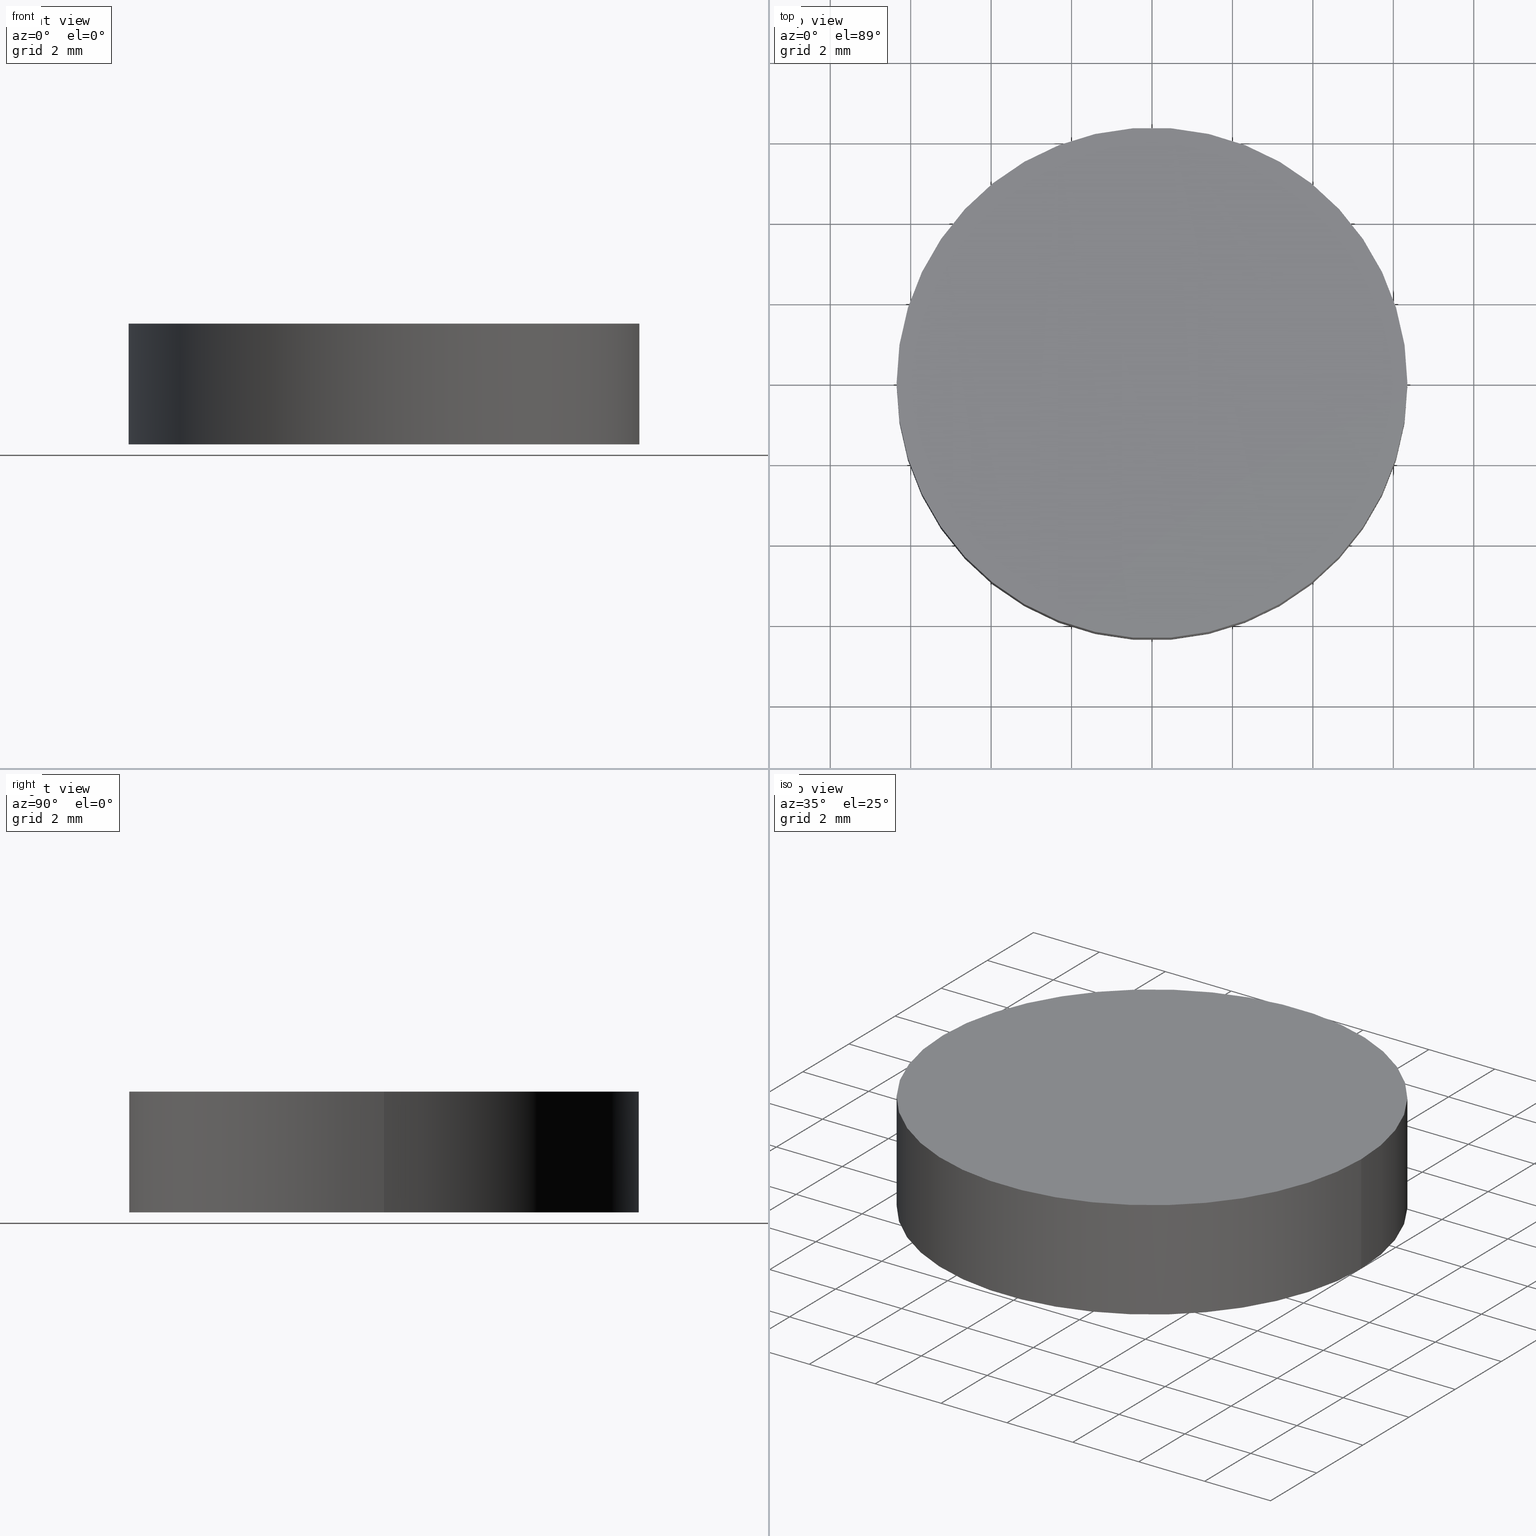
[diagram: canonical four-view strip — front | top / right | iso, engineering-drawing reading convention]
A machine part, canonical four-view strip (front | top / right | iso — engineering-drawing reading convention). The complete STEP part file that produces these views, byte-faithful:
ISO-10303-21;
HEADER;
FILE_DESCRIPTION (( 'STEP AP214' ),
    '1' );
FILE_NAME ('190058.STEP',
    '2019-07-16T03:13:17',
    ( 'user' ),
    ( '΢���й�' ),
    'SwSTEP 2.0',
    'SolidWorks 2016',
    '' );
FILE_SCHEMA (( 'AUTOMOTIVE_DESIGN' ));
ENDSEC;

DATA;
#1 = SURFACE_STYLE_FILL_AREA ( #36 ) ;
#2 = CARTESIAN_POINT ( 'NONE',  ( 0.0000000000000000000, 0.0000000000000000000, 0.0000000000000000000 ) ) ;
#3 = DIRECTION ( 'NONE',  ( 0.0000000000000000000, 0.0000000000000000000, 1.000000000000000000 ) ) ;
#4 = DIRECTION ( 'NONE',  ( 0.0000000000000000000, 0.0000000000000000000, 1.000000000000000000 ) ) ;
#5 = DIRECTION ( 'NONE',  ( 1.000000000000000000, 0.0000000000000000000, 0.0000000000000000000 ) ) ;
#6 = FACE_OUTER_BOUND ( 'NONE', #44, .T. ) ;
#7 = EDGE_CURVE ( 'NONE', #117, #127, #41, .T. ) ;
#8 = FACE_OUTER_BOUND ( 'NONE', #137, .T. ) ;
#9 = ORIENTED_EDGE ( 'NONE', *, *, #99, .T. ) ;
#10 = SURFACE_STYLE_USAGE ( .BOTH. , #94 ) ;
#11 =( NAMED_UNIT ( * ) PLANE_ANGLE_UNIT ( ) SI_UNIT ( $, .RADIAN. ) );
#12 =( LENGTH_UNIT ( ) NAMED_UNIT ( * ) SI_UNIT ( .MILLI., .METRE. ) );
#13 = CARTESIAN_POINT ( 'NONE',  ( 0.0000000000000000000, 0.0000000000000000000, 3.000000000000000000 ) ) ;
#14 = PLANE ( 'NONE',  #93 ) ;
#15 = CARTESIAN_POINT ( 'NONE',  ( 0.0000000000000000000, 0.0000000000000000000, 3.000000000000000000 ) ) ;
#16 = EDGE_LOOP ( 'NONE', ( #108, #101, #45, #131 ) ) ;
#17 = ORIENTED_EDGE ( 'NONE', *, *, #85, .F. ) ;
#18 = ADVANCED_BREP_SHAPE_REPRESENTATION ( '190058', ( #138, #111 ), #49 ) ;
#19 = AXIS2_PLACEMENT_3D ( 'NONE', #26, #53, #5 ) ;
#20 = UNCERTAINTY_MEASURE_WITH_UNIT (LENGTH_MEASURE( 1.000000000000000100E-005 ), #12, 'distance_accuracy_value', 'NONE');
#21 = FILL_AREA_STYLE ('',( #103 ) ) ;
#22 = SURFACE_STYLE_USAGE ( .BOTH. , #104 ) ;
#23 = DIRECTION ( 'NONE',  ( 0.0000000000000000000, 0.0000000000000000000, 1.000000000000000000 ) ) ;
#24 = DIRECTION ( 'NONE',  ( 1.000000000000000000, 0.0000000000000000000, 0.0000000000000000000 ) ) ;
#25 = PRESENTATION_LAYER_ASSIGNMENT (  '', '', ( #27 ) ) ;
#26 = CARTESIAN_POINT ( 'NONE',  ( 0.0000000000000000000, 0.0000000000000000000, 3.000000000000000000 ) ) ;
#27 = STYLED_ITEM ( 'NONE', ( #122 ), #138 ) ;
#28 = ORIENTED_EDGE ( 'NONE', *, *, #7, .T. ) ;
#29 = ADVANCED_FACE ( 'NONE', ( #8 ), #66, .T. ) ;
#30 = COLOUR_RGB ( '',1.000000000000000000, 1.000000000000000000, 1.000000000000000000 ) ;
#31 = SHAPE_DEFINITION_REPRESENTATION ( #81, #18 ) ;
#32 = MECHANICAL_DESIGN_GEOMETRIC_PRESENTATION_REPRESENTATION (  '', ( #27 ), #43 ) ;
#33 = APPLICATION_PROTOCOL_DEFINITION ( 'draft international standard', 'automotive_design', 1998, #113 ) ;
#34 = VECTOR ( 'NONE', #40, 1000.000000000000000 ) ;
#35 = APPLICATION_CONTEXT ( 'automotive_design' ) ;
#36 = FILL_AREA_STYLE ('',( #115 ) ) ;
#37 = AXIS2_PLACEMENT_3D ( 'NONE', #15, #88, #109 ) ;
#38 = PLANE ( 'NONE',  #59 ) ;
#39 = CARTESIAN_POINT ( 'NONE',  ( 0.0000000000000000000, 0.0000000000000000000, 0.0000000000000000000 ) ) ;
#40 = DIRECTION ( 'NONE',  ( -0.0000000000000000000, -0.0000000000000000000, -1.000000000000000000 ) ) ;
#41 = CIRCLE ( 'NONE', #19, 6.349999999999999600 ) ;
#42 = SURFACE_STYLE_FILL_AREA ( #21 ) ;
#43 =( GEOMETRIC_REPRESENTATION_CONTEXT ( 3 ) GLOBAL_UNCERTAINTY_ASSIGNED_CONTEXT ( ( #100 ) ) GLOBAL_UNIT_ASSIGNED_CONTEXT ( ( #96, #11, #84 ) ) REPRESENTATION_CONTEXT ( 'NONE', 'WORKASPACE' ) );
#44 = EDGE_LOOP ( 'NONE', ( #28, #130 ) ) ;
#45 = ORIENTED_EDGE ( 'NONE', *, *, #64, .T. ) ;
#46 = PRODUCT_CONTEXT ( 'NONE', #35, 'mechanical' ) ;
#47 = APPLICATION_PROTOCOL_DEFINITION ( 'draft international standard', 'automotive_design', 1998, #35 ) ;
#48 = DIRECTION ( 'NONE',  ( -1.000000000000000000, 0.0000000000000000000, 0.0000000000000000000 ) ) ;
#49 =( GEOMETRIC_REPRESENTATION_CONTEXT ( 3 ) GLOBAL_UNCERTAINTY_ASSIGNED_CONTEXT ( ( #20 ) ) GLOBAL_UNIT_ASSIGNED_CONTEXT ( ( #12, #132, #56 ) ) REPRESENTATION_CONTEXT ( 'NONE', 'WORKASPACE' ) );
#50 = LINE ( 'NONE', #136, #34 ) ;
#51 = AXIS2_PLACEMENT_3D ( 'NONE', #86, #3, #72 ) ;
#52 = ORIENTED_EDGE ( 'NONE', *, *, #99, .F. ) ;
#53 = DIRECTION ( 'NONE',  ( 0.0000000000000000000, 0.0000000000000000000, 1.000000000000000000 ) ) ;
#54 = VERTEX_POINT ( 'NONE', #126 ) ;
#55 = DIRECTION ( 'NONE',  ( 0.0000000000000000000, 0.0000000000000000000, 1.000000000000000000 ) ) ;
#56 =( NAMED_UNIT ( * ) SI_UNIT ( $, .STERADIAN. ) SOLID_ANGLE_UNIT ( ) );
#57 = FACE_OUTER_BOUND ( 'NONE', #110, .T. ) ;
#58 = DIRECTION ( 'NONE',  ( 1.000000000000000000, 0.0000000000000000000, -0.0000000000000000000 ) ) ;
#59 = AXIS2_PLACEMENT_3D ( 'NONE', #2, #133, #58 ) ;
#60 = CARTESIAN_POINT ( 'NONE',  ( -6.349999999999999600, 0.0000000000000000000, 3.000000000000000000 ) ) ;
#61 = DIRECTION ( 'NONE',  ( -0.0000000000000000000, -0.0000000000000000000, -1.000000000000000000 ) ) ;
#62 = DIRECTION ( 'NONE',  ( -0.0000000000000000000, -0.0000000000000000000, -1.000000000000000000 ) ) ;
#63 = CIRCLE ( 'NONE', #51, 6.349999999999999600 ) ;
#64 = EDGE_CURVE ( 'NONE', #117, #54, #50, .T. ) ;
#65 = STYLED_ITEM ( 'NONE', ( #68 ), #18 ) ;
#66 = CYLINDRICAL_SURFACE ( 'NONE', #37, 6.349999999999999600 ) ;
#67 = AXIS2_PLACEMENT_3D ( 'NONE', #13, #61, #48 ) ;
#68 = PRESENTATION_STYLE_ASSIGNMENT (( #10 ) ) ;
#69 = LINE ( 'NONE', #107, #125 ) ;
#70 =( NAMED_UNIT ( * ) SI_UNIT ( $, .STERADIAN. ) SOLID_ANGLE_UNIT ( ) );
#71 = CARTESIAN_POINT ( 'NONE',  ( 0.0000000000000000000, 0.0000000000000000000, 0.0000000000000000000 ) ) ;
#72 = DIRECTION ( 'NONE',  ( 1.000000000000000000, 0.0000000000000000000, 0.0000000000000000000 ) ) ;
#73 = COLOUR_RGB ( '',1.000000000000000000, 1.000000000000000000, 1.000000000000000000 ) ;
#74 = EDGE_CURVE ( 'NONE', #127, #102, #69, .T. ) ;
#75 = DIRECTION ( 'NONE',  ( 1.000000000000000000, 0.0000000000000000000, -0.0000000000000000000 ) ) ;
#76 = PRESENTATION_LAYER_ASSIGNMENT (  '', '', ( #65 ) ) ;
#77 = ORIENTED_EDGE ( 'NONE', *, *, #74, .T. ) ;
#78 = AXIS2_PLACEMENT_3D ( 'NONE', #105, #23, #97 ) ;
#79 = ADVANCED_FACE ( 'NONE', ( #6 ), #14, .T. ) ;
#80 = ORIENTED_EDGE ( 'NONE', *, *, #64, .F. ) ;
#81 = PRODUCT_DEFINITION_SHAPE ( 'NONE', 'NONE',  #119 ) ;
#82 = MECHANICAL_DESIGN_GEOMETRIC_PRESENTATION_REPRESENTATION (  '', ( #65 ), #91 ) ;
#83 =( LENGTH_UNIT ( ) NAMED_UNIT ( * ) SI_UNIT ( .MILLI., .METRE. ) );
#84 =( NAMED_UNIT ( * ) SI_UNIT ( $, .STERADIAN. ) SOLID_ANGLE_UNIT ( ) );
#85 = EDGE_CURVE ( 'NONE', #54, #102, #95, .T. ) ;
#86 = CARTESIAN_POINT ( 'NONE',  ( 0.0000000000000000000, 0.0000000000000000000, 3.000000000000000000 ) ) ;
#87 = PRODUCT_DEFINITION_CONTEXT ( 'detailed design', #113, 'design' ) ;
#88 = DIRECTION ( 'NONE',  ( -0.0000000000000000000, -0.0000000000000000000, -1.000000000000000000 ) ) ;
#89 = EDGE_CURVE ( 'NONE', #127, #117, #63, .T. ) ;
#90 = ADVANCED_FACE ( 'NONE', ( #98 ), #92, .T. ) ;
#91 =( GEOMETRIC_REPRESENTATION_CONTEXT ( 3 ) GLOBAL_UNCERTAINTY_ASSIGNED_CONTEXT ( ( #135 ) ) GLOBAL_UNIT_ASSIGNED_CONTEXT ( ( #83, #140, #70 ) ) REPRESENTATION_CONTEXT ( 'NONE', 'WORKASPACE' ) );
#92 = CYLINDRICAL_SURFACE ( 'NONE', #67, 6.349999999999999600 ) ;
#93 = AXIS2_PLACEMENT_3D ( 'NONE', #118, #4, #75 ) ;
#94 = SURFACE_SIDE_STYLE ('',( #42 ) ) ;
#95 = CIRCLE ( 'NONE', #112, 6.349999999999999600 ) ;
#96 =( LENGTH_UNIT ( ) NAMED_UNIT ( * ) SI_UNIT ( .MILLI., .METRE. ) );
#97 = DIRECTION ( 'NONE',  ( 1.000000000000000000, 0.0000000000000000000, 0.0000000000000000000 ) ) ;
#98 = FACE_OUTER_BOUND ( 'NONE', #16, .T. ) ;
#99 = EDGE_CURVE ( 'NONE', #102, #54, #120, .T. ) ;
#100 = UNCERTAINTY_MEASURE_WITH_UNIT (LENGTH_MEASURE( 1.000000000000000100E-005 ), #96, 'distance_accuracy_value', 'NONE');
#101 = ORIENTED_EDGE ( 'NONE', *, *, #7, .F. ) ;
#102 = VERTEX_POINT ( 'NONE', #116 ) ;
#103 = FILL_AREA_STYLE_COLOUR ( '', #73 ) ;
#104 = SURFACE_SIDE_STYLE ('',( #1 ) ) ;
#105 = CARTESIAN_POINT ( 'NONE',  ( 0.0000000000000000000, 0.0000000000000000000, 0.0000000000000000000 ) ) ;
#106 = DIRECTION ( 'NONE',  ( 0.0000000000000000000, 0.0000000000000000000, 1.000000000000000000 ) ) ;
#107 = CARTESIAN_POINT ( 'NONE',  ( 6.349999999999999600, 7.776507174585692200E-016, 3.000000000000000000 ) ) ;
#108 = ORIENTED_EDGE ( 'NONE', *, *, #74, .F. ) ;
#109 = DIRECTION ( 'NONE',  ( -1.000000000000000000, 0.0000000000000000000, 0.0000000000000000000 ) ) ;
#110 = EDGE_LOOP ( 'NONE', ( #17, #52 ) ) ;
#111 = AXIS2_PLACEMENT_3D ( 'NONE', #71, #55, #124 ) ;
#112 = AXIS2_PLACEMENT_3D ( 'NONE', #39, #106, #24 ) ;
#113 = APPLICATION_CONTEXT ( 'automotive_design' ) ;
#114 = PRODUCT ( '190058', '190058', '', ( #46 ) ) ;
#115 = FILL_AREA_STYLE_COLOUR ( '', #30 ) ;
#116 = CARTESIAN_POINT ( 'NONE',  ( 6.349999999999999600, 7.776507174585692200E-016, 0.0000000000000000000 ) ) ;
#117 = VERTEX_POINT ( 'NONE', #60 ) ;
#118 = CARTESIAN_POINT ( 'NONE',  ( 0.0000000000000000000, 0.0000000000000000000, 3.000000000000000000 ) ) ;
#119 = PRODUCT_DEFINITION ( 'δ֪', '', #123, #87 ) ;
#120 = CIRCLE ( 'NONE', #78, 6.349999999999999600 ) ;
#121 = CLOSED_SHELL ( 'NONE', ( #29, #90, #79, #128 ) ) ;
#122 = PRESENTATION_STYLE_ASSIGNMENT (( #22 ) ) ;
#123 = PRODUCT_DEFINITION_FORMATION_WITH_SPECIFIED_SOURCE ( '�κ�', '', #114, .NOT_KNOWN. ) ;
#124 = DIRECTION ( 'NONE',  ( 1.000000000000000000, 0.0000000000000000000, 0.0000000000000000000 ) ) ;
#125 = VECTOR ( 'NONE', #62, 1000.000000000000000 ) ;
#126 = CARTESIAN_POINT ( 'NONE',  ( -6.349999999999999600, 0.0000000000000000000, 0.0000000000000000000 ) ) ;
#127 = VERTEX_POINT ( 'NONE', #134 ) ;
#128 = ADVANCED_FACE ( 'NONE', ( #57 ), #38, .F. ) ;
#129 = PRODUCT_RELATED_PRODUCT_CATEGORY ( 'part', '', ( #114 ) ) ;
#130 = ORIENTED_EDGE ( 'NONE', *, *, #89, .T. ) ;
#131 = ORIENTED_EDGE ( 'NONE', *, *, #85, .T. ) ;
#132 =( NAMED_UNIT ( * ) PLANE_ANGLE_UNIT ( ) SI_UNIT ( $, .RADIAN. ) );
#133 = DIRECTION ( 'NONE',  ( 0.0000000000000000000, 0.0000000000000000000, 1.000000000000000000 ) ) ;
#134 = CARTESIAN_POINT ( 'NONE',  ( 6.349999999999999600, 7.776507174585692200E-016, 3.000000000000000000 ) ) ;
#135 = UNCERTAINTY_MEASURE_WITH_UNIT (LENGTH_MEASURE( 1.000000000000000100E-005 ), #83, 'distance_accuracy_value', 'NONE');
#136 = CARTESIAN_POINT ( 'NONE',  ( -6.349999999999999600, 0.0000000000000000000, 3.000000000000000000 ) ) ;
#137 = EDGE_LOOP ( 'NONE', ( #139, #77, #9, #80 ) ) ;
#138 = MANIFOLD_SOLID_BREP ( '͹̨-����1', #121 ) ;
#139 = ORIENTED_EDGE ( 'NONE', *, *, #89, .F. ) ;
#140 =( NAMED_UNIT ( * ) PLANE_ANGLE_UNIT ( ) SI_UNIT ( $, .RADIAN. ) );
ENDSEC;
END-ISO-10303-21;
